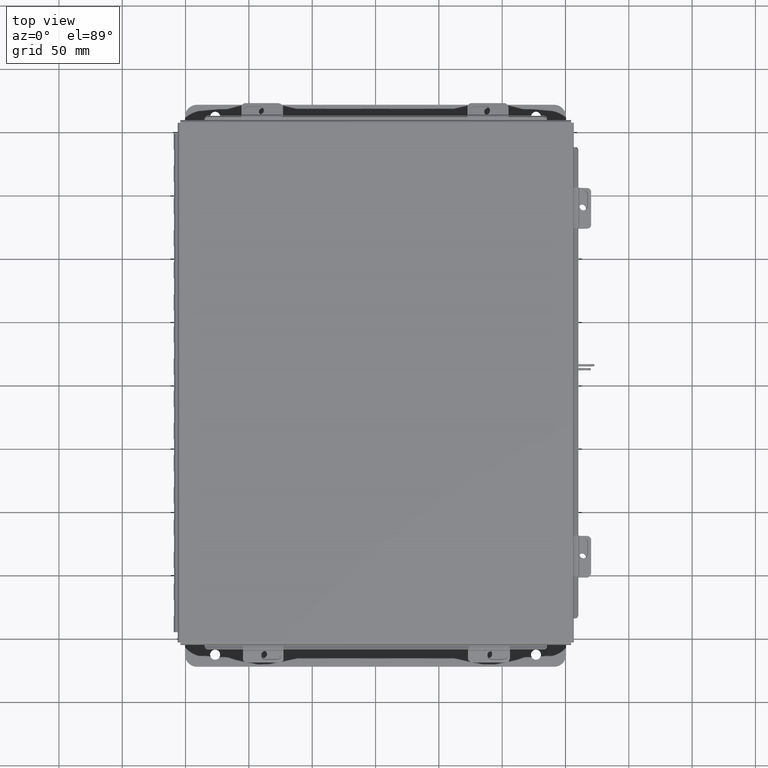
[diagram: clean part render]
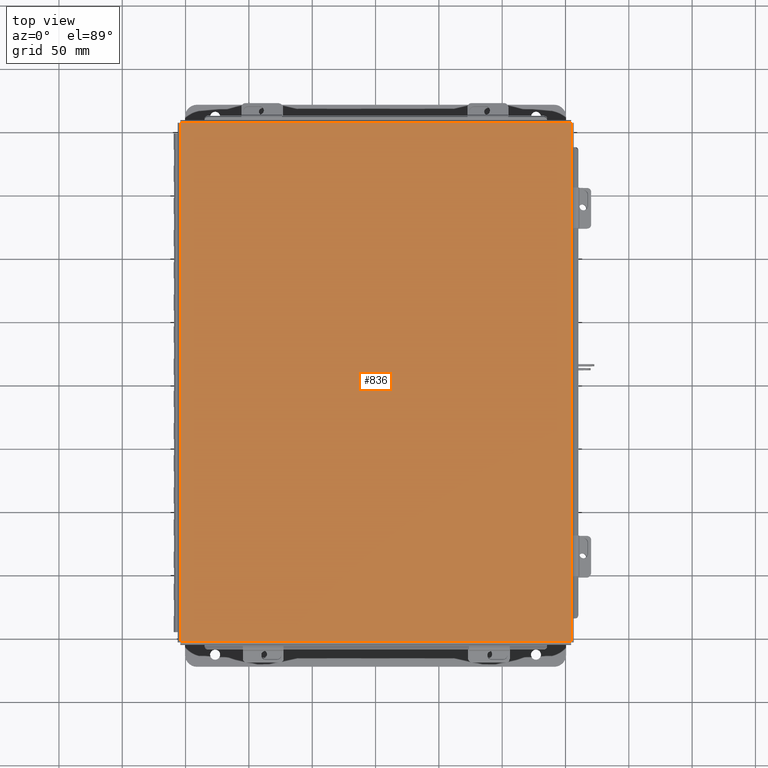
[diagram: same view with one face highlighted and labeled with its STEP entity id]
A machine part, top view. The second image highlights one B-rep face of the part: STEP entity #836.
In plain terms, the highlighted planar face has unit normal (-0, -0, 1).
Its self-contained STEP definition (entity closure, byte-faithful):
#220 = EDGE_CURVE ( 'NONE', #10286, #4129, #15811, .T. ) ;
#836 = ADVANCED_FACE ( 'NONE', ( #17026 ), #16658, .T. ) ;
#1682 = CARTESIAN_POINT ( 'NONE',  ( 6.068550000000000100, 8.074478932188144500, -0.07469999999999907300 ) ) ;
#1864 = ORIENTED_EDGE ( 'NONE', *, *, #220, .T. ) ;
#3911 = VECTOR ( 'NONE', #18999, 39.37007874015748100 ) ;
#4129 = VERTEX_POINT ( 'NONE', #17617 ) ;
#4487 = EDGE_LOOP ( 'NONE', ( #7389, #7789, #1864, #11044 ) ) ;
#4755 = CARTESIAN_POINT ( 'NONE',  ( 0.0000000000000000000, 0.0000000000000000000, -0.07470000000000015500 ) ) ;
#6313 = DIRECTION ( 'NONE',  ( -1.000000000000000000, -2.258600338820354400E-033, -0.0000000000000000000 ) ) ;
#7389 = ORIENTED_EDGE ( 'NONE', *, *, #10963, .T. ) ;
#7789 = ORIENTED_EDGE ( 'NONE', *, *, #8191, .T. ) ;
#7832 = DIRECTION ( 'NONE',  ( -2.258600338820354400E-033, -1.000000000000000000, -0.0000000000000000000 ) ) ;
#8191 = EDGE_CURVE ( 'NONE', #12097, #10286, #14977, .T. ) ;
#10286 = VERTEX_POINT ( 'NONE', #10438 ) ;
#10438 = CARTESIAN_POINT ( 'NONE',  ( 6.068550000000000100, -8.068549999999991200, -0.07470000000000015500 ) ) ;
#10963 = EDGE_CURVE ( 'NONE', #16937, #12097, #15827, .T. ) ;
#11044 = ORIENTED_EDGE ( 'NONE', *, *, #19466, .T. ) ;
#12097 = VERTEX_POINT ( 'NONE', #16481 ) ;
#14348 = CARTESIAN_POINT ( 'NONE',  ( -6.068550000000000100, -8.074478932188126700, -0.07470000000000125200 ) ) ;
#14977 = LINE ( 'NONE', #1682, #18140 ) ;
#15079 = CARTESIAN_POINT ( 'NONE',  ( -6.074478932188137400, 8.068550000000009000, -0.07470000000000015500 ) ) ;
#15348 = VECTOR ( 'NONE', #16659, 39.37007874015748100 ) ;
#15811 = LINE ( 'NONE', #18492, #18973 ) ;
#15827 = LINE ( 'NONE', #15079, #15348 ) ;
#15839 = LINE ( 'NONE', #14348, #3911 ) ;
#16101 = DIRECTION ( 'NONE',  ( -0.0000000000000000000, 0.0000000000000000000, -1.000000000000000000 ) ) ;
#16374 = CARTESIAN_POINT ( 'NONE',  ( -6.068550000000000100, 8.068550000000009000, -0.07470000000000015500 ) ) ;
#16481 = CARTESIAN_POINT ( 'NONE',  ( 6.068550000000000100, 8.068550000000009000, -0.07469999999999907300 ) ) ;
#16658 = PLANE ( 'NONE',  #18998 ) ;
#16659 = DIRECTION ( 'NONE',  ( 1.000000000000000000, 2.258600338820354400E-033, -0.0000000000000000000 ) ) ;
#16937 = VERTEX_POINT ( 'NONE', #16374 ) ;
#17026 = FACE_OUTER_BOUND ( 'NONE', #4487, .T. ) ;
#17617 = CARTESIAN_POINT ( 'NONE',  ( -6.068550000000000100, -8.068549999999991200, -0.07470000000000125200 ) ) ;
#18140 = VECTOR ( 'NONE', #7832, 39.37007874015748100 ) ;
#18492 = CARTESIAN_POINT ( 'NONE',  ( 6.074478932188137400, -8.068549999999991200, -0.07470000000000015500 ) ) ;
#18842 = DIRECTION ( 'NONE',  ( -1.000000000000000000, -2.258600338820354400E-033, 0.0000000000000000000 ) ) ;
#18973 = VECTOR ( 'NONE', #6313, 39.37007874015748100 ) ;
#18998 = AXIS2_PLACEMENT_3D ( 'NONE', #4755, #16101, #18842 ) ;
#18999 = DIRECTION ( 'NONE',  ( 6.815696461389437500E-033, 1.000000000000000000, 8.208677865577646300E-017 ) ) ;
#19466 = EDGE_CURVE ( 'NONE', #4129, #16937, #15839, .T. ) ;